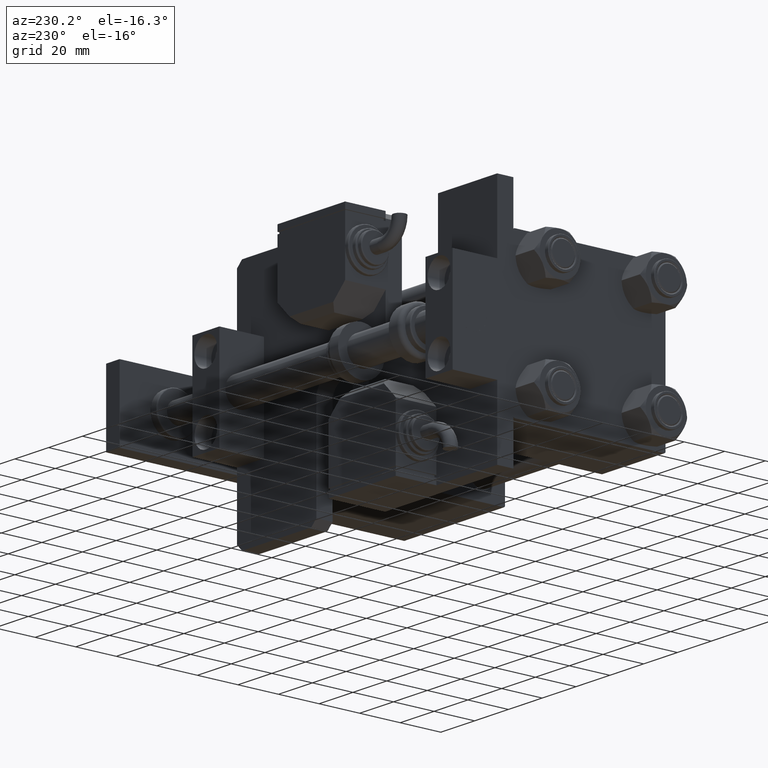
[diagram: clean part render]
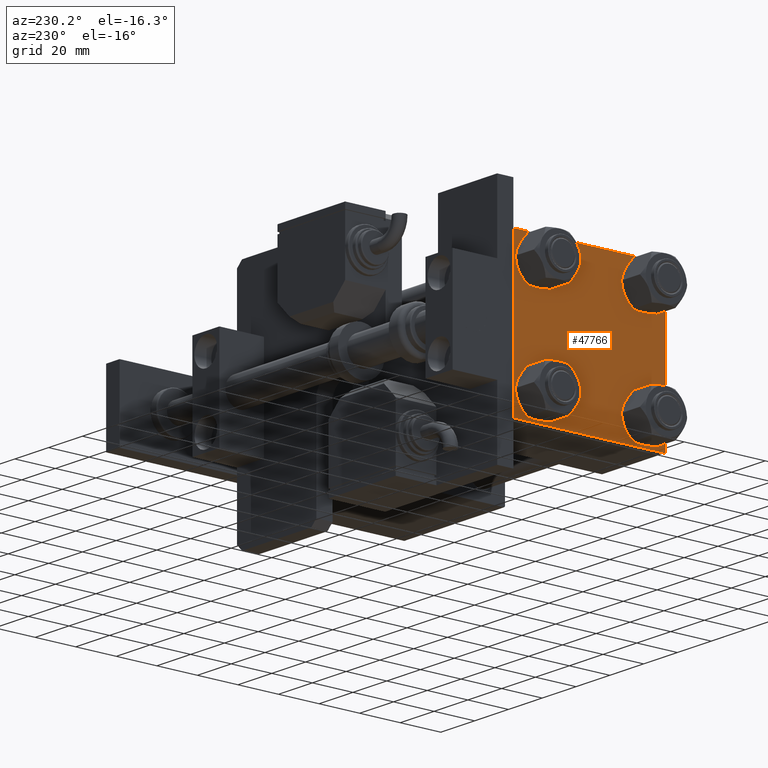
[diagram: same view with one face highlighted and labeled with its STEP entity id]
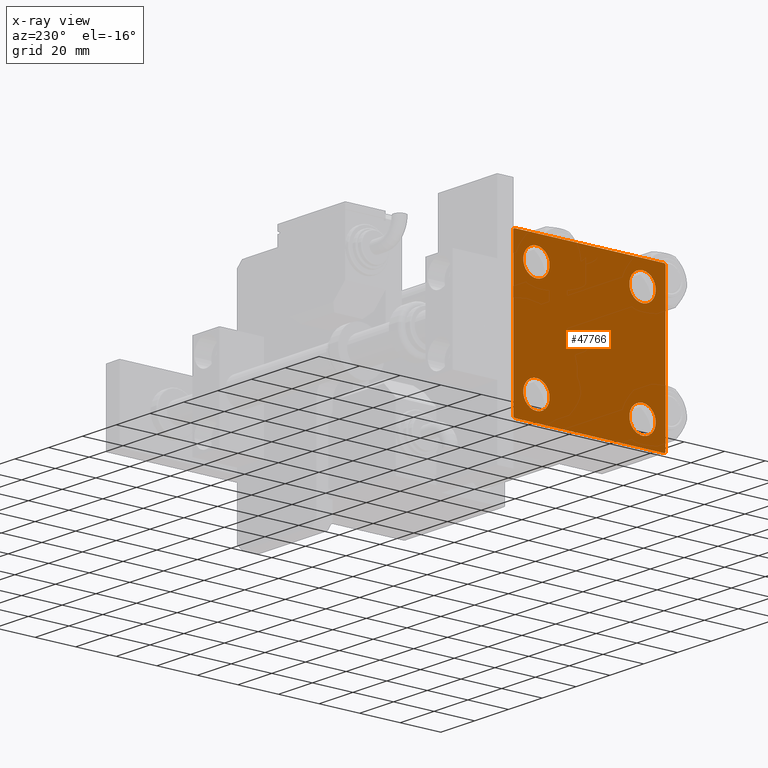
[diagram: x-ray of the same camera — body ghosted, the highlighted face saturated]
A machine part, auxiliary view. The second image highlights one B-rep face of the part: STEP entity #47766.
The next image is the same camera in x-ray: the body ghosted, the highlighted face saturated — about 0% of this face is hidden behind the body in this view.
In plain terms, the highlighted planar face has unit normal (-1, 0, 0).
Its self-contained STEP definition (entity closure, byte-faithful):
#895 = DIRECTION ( 'NONE',  ( 1.000000000000000000, -0.000000000000000000, 0.000000000000000000 ) ) ;
#929 = LINE ( 'NONE', #44198, #15092 ) ;
#1557 = AXIS2_PLACEMENT_3D ( 'NONE', #24300, #27985, #40961 ) ;
#2440 = EDGE_LOOP ( 'NONE', ( #43529, #44034 ) ) ;
#2997 = DIRECTION ( 'NONE',  ( 0.000000000000000000, -0.7071067811865524577, 0.7071067811865426878 ) ) ;
#3530 = DIRECTION ( 'NONE',  ( -0.000000000000000000, 0.7071067811865474617, 0.7071067811865474617 ) ) ;
#4423 = EDGE_CURVE ( 'NONE', #8997, #32509, #36838, .T. ) ;
#5161 = VECTOR ( 'NONE', #16016, 1000.000000000000000 ) ;
#5673 = CARTESIAN_POINT ( 'NONE',  ( 0.000000000000000000, 26.14999999999999858, -19.64999999999998792 ) ) ;
#5741 = AXIS2_PLACEMENT_3D ( 'NONE', #40682, #28535, #24006 ) ;
#5894 = DIRECTION ( 'NONE',  ( 1.000000000000000000, -0.000000000000000000, 0.000000000000000000 ) ) ;
#5937 = ORIENTED_EDGE ( 'NONE', *, *, #48269, .F. ) ;
#6189 = FACE_BOUND ( 'NONE', #10430, .T. ) ;
#7311 = FACE_OUTER_BOUND ( 'NONE', #47006, .T. ) ;
#7521 = CARTESIAN_POINT ( 'NONE',  ( 0.000000000000000000, 36.99999999999997868, -37.50000000000000000 ) ) ;
#7555 = ORIENTED_EDGE ( 'NONE', *, *, #39469, .T. ) ;
#7998 = CIRCLE ( 'NONE', #47686, 6.500000000000023093 ) ;
#8202 = EDGE_CURVE ( 'NONE', #29864, #29684, #32537, .T. ) ;
#8760 = ORIENTED_EDGE ( 'NONE', *, *, #10245, .T. ) ;
#8997 = VERTEX_POINT ( 'NONE', #5673 ) ;
#9113 = VERTEX_POINT ( 'NONE', #23496 ) ;
#10245 = EDGE_CURVE ( 'NONE', #37580, #49645, #42477, .T. ) ;
#10255 = LINE ( 'NONE', #27528, #54720 ) ;
#10430 = EDGE_LOOP ( 'NONE', ( #8760, #22340 ) ) ;
#11779 = ORIENTED_EDGE ( 'NONE', *, *, #38650, .T. ) ;
#11996 = ORIENTED_EDGE ( 'NONE', *, *, #12467, .F. ) ;
#12467 = EDGE_CURVE ( 'NONE', #51398, #24683, #47216, .T. ) ;
#13075 = VECTOR ( 'NONE', #3530, 1000.000000000000114 ) ;
#13315 = AXIS2_PLACEMENT_3D ( 'NONE', #18922, #26582, #44352 ) ;
#13993 = VECTOR ( 'NONE', #2997, 1000.000000000000000 ) ;
#14829 = VERTEX_POINT ( 'NONE', #33054 ) ;
#15092 = VECTOR ( 'NONE', #47590, 1000.000000000000000 ) ;
#16016 = DIRECTION ( 'NONE',  ( 0.000000000000000000, 9.251858538542971581E-17, -1.000000000000000000 ) ) ;
#16835 = CARTESIAN_POINT ( 'NONE',  ( 0.000000000000000000, -37.50000000000000711, 37.49999999999999289 ) ) ;
#17190 = DIRECTION ( 'NONE',  ( 0.000000000000000000, -1.000000000000000000, -9.251858538542972814E-17 ) ) ;
#18067 = DIRECTION ( 'NONE',  ( 0.000000000000000000, 0.000000000000000000, 1.000000000000000000 ) ) ;
#18455 = VECTOR ( 'NONE', #17190, 1000.000000000000000 ) ;
#18922 = CARTESIAN_POINT ( 'NONE',  ( 0.000000000000000000, 26.14999999999999858, -26.15000000000000213 ) ) ;
#18953 = VECTOR ( 'NONE', #53433, 1000.000000000000114 ) ;
#18970 = CARTESIAN_POINT ( 'NONE',  ( 0.000000000000000000, 37.24999999999998579, -37.24999999999998579 ) ) ;
#19940 = ORIENTED_EDGE ( 'NONE', *, *, #30793, .T. ) ;
#21673 = AXIS2_PLACEMENT_3D ( 'NONE', #51030, #46769, #29022 ) ;
#21825 = EDGE_LOOP ( 'NONE', ( #35226, #50013 ) ) ;
#22340 = ORIENTED_EDGE ( 'NONE', *, *, #50248, .T. ) ;
#22573 = ORIENTED_EDGE ( 'NONE', *, *, #8202, .T. ) ;
#22721 = DIRECTION ( 'NONE',  ( 1.000000000000000000, -0.000000000000000000, 0.000000000000000000 ) ) ;
#23449 = FACE_BOUND ( 'NONE', #34424, .T. ) ;
#23496 = CARTESIAN_POINT ( 'NONE',  ( 0.000000000000000000, 26.14999999999999858, 19.64999999999998437 ) ) ;
#24006 = DIRECTION ( 'NONE',  ( 0.000000000000000000, 0.000000000000000000, 1.000000000000000000 ) ) ;
#24300 = CARTESIAN_POINT ( 'NONE',  ( 0.000000000000000000, 0.000000000000000000, 0.000000000000000000 ) ) ;
#24683 = VERTEX_POINT ( 'NONE', #47451 ) ;
#24761 = EDGE_CURVE ( 'NONE', #48855, #44259, #27364, .T. ) ;
#25055 = LINE ( 'NONE', #42267, #13075 ) ;
#25548 = CARTESIAN_POINT ( 'NONE',  ( 0.000000000000000000, -26.14999999999999147, 26.15000000000000924 ) ) ;
#25809 = CARTESIAN_POINT ( 'NONE',  ( 0.000000000000000000, 26.14999999999999858, 32.65000000000002700 ) ) ;
#25972 = CARTESIAN_POINT ( 'NONE',  ( 0.000000000000000000, 37.49999999999999289, -37.50000000000000000 ) ) ;
#26546 = AXIS2_PLACEMENT_3D ( 'NONE', #45459, #44900, #49422 ) ;
#26582 = DIRECTION ( 'NONE',  ( 1.000000000000000000, -0.000000000000000000, 0.000000000000000000 ) ) ;
#27364 = CIRCLE ( 'NONE', #34575, 6.500000000000015987 ) ;
#27507 = CARTESIAN_POINT ( 'NONE',  ( 0.000000000000000000, 37.49999999999999289, -36.99999999999998579 ) ) ;
#27528 = CARTESIAN_POINT ( 'NONE',  ( 0.000000000000000000, 37.24999999999999289, 37.24999999999999289 ) ) ;
#27985 = DIRECTION ( 'NONE',  ( -1.000000000000000000, 0.000000000000000000, -0.000000000000000000 ) ) ;
#28535 = DIRECTION ( 'NONE',  ( 1.000000000000000000, -0.000000000000000000, 0.000000000000000000 ) ) ;
#28543 = PLANE ( 'NONE',  #1557 ) ;
#29022 = DIRECTION ( 'NONE',  ( 0.000000000000000000, 0.000000000000000000, 1.000000000000000000 ) ) ;
#29684 = VERTEX_POINT ( 'NONE', #7521 ) ;
#29864 = VERTEX_POINT ( 'NONE', #27507 ) ;
#30147 = ORIENTED_EDGE ( 'NONE', *, *, #35076, .T. ) ;
#30793 = EDGE_CURVE ( 'NONE', #54387, #52917, #45409, .T. ) ;
#30809 = CARTESIAN_POINT ( 'NONE',  ( 0.000000000000000000, -26.14999999999999147, 19.64999999999999147 ) ) ;
#30941 = VERTEX_POINT ( 'NONE', #38612 ) ;
#31183 = DIRECTION ( 'NONE',  ( 0.000000000000000000, 0.000000000000000000, 1.000000000000000000 ) ) ;
#31203 = CARTESIAN_POINT ( 'NONE',  ( 0.000000000000000000, -26.14999999999999147, 26.15000000000000924 ) ) ;
#31353 = CARTESIAN_POINT ( 'NONE',  ( 0.000000000000000000, -26.14999999999999147, -26.15000000000000924 ) ) ;
#32208 = FACE_BOUND ( 'NONE', #2440, .T. ) ;
#32216 = ORIENTED_EDGE ( 'NONE', *, *, #40550, .T. ) ;
#32400 = VECTOR ( 'NONE', #50923, 1000.000000000000000 ) ;
#32509 = VERTEX_POINT ( 'NONE', #51425 ) ;
#32537 = LINE ( 'NONE', #18970, #18953 ) ;
#33054 = CARTESIAN_POINT ( 'NONE',  ( 0.000000000000000000, -37.50000000000000711, 36.99999999999999289 ) ) ;
#33698 = CARTESIAN_POINT ( 'NONE',  ( 0.000000000000000000, 37.49999999999999289, 37.50000000000000000 ) ) ;
#34424 = EDGE_LOOP ( 'NONE', ( #46468, #7555 ) ) ;
#34575 = AXIS2_PLACEMENT_3D ( 'NONE', #31353, #5894, #18067 ) ;
#35076 = EDGE_CURVE ( 'NONE', #30941, #29864, #929, .T. ) ;
#35226 = ORIENTED_EDGE ( 'NONE', *, *, #39405, .T. ) ;
#35583 = CIRCLE ( 'NONE', #26546, 6.500000000000015987 ) ;
#36838 = CIRCLE ( 'NONE', #13315, 6.500000000000015987 ) ;
#37513 = CARTESIAN_POINT ( 'NONE',  ( 0.000000000000000000, -37.24999999999975842, -37.25000000000027001 ) ) ;
#37580 = VERTEX_POINT ( 'NONE', #41424 ) ;
#37869 = VERTEX_POINT ( 'NONE', #25809 ) ;
#37876 = AXIS2_PLACEMENT_3D ( 'NONE', #40211, #895, #31183 ) ;
#38583 = EDGE_CURVE ( 'NONE', #9113, #37869, #46020, .T. ) ;
#38612 = CARTESIAN_POINT ( 'NONE',  ( 0.000000000000000000, 37.49999999999999289, 37.00000000000000000 ) ) ;
#38650 = EDGE_CURVE ( 'NONE', #14829, #24683, #25055, .T. ) ;
#39275 = CIRCLE ( 'NONE', #5741, 6.500000000000023093 ) ;
#39405 = EDGE_CURVE ( 'NONE', #37869, #9113, #39275, .T. ) ;
#39469 = EDGE_CURVE ( 'NONE', #44259, #48855, #35583, .T. ) ;
#40211 = CARTESIAN_POINT ( 'NONE',  ( 0.000000000000000000, 26.14999999999999858, -26.15000000000000213 ) ) ;
#40550 = EDGE_CURVE ( 'NONE', #29684, #54387, #51397, .T. ) ;
#40682 = CARTESIAN_POINT ( 'NONE',  ( 0.000000000000000000, 26.14999999999999858, 26.15000000000000213 ) ) ;
#40961 = DIRECTION ( 'NONE',  ( -0.000000000000000000, 0.000000000000000000, 1.000000000000000000 ) ) ;
#41424 = CARTESIAN_POINT ( 'NONE',  ( 0.000000000000000000, -26.14999999999999147, 32.65000000000003411 ) ) ;
#42267 = CARTESIAN_POINT ( 'NONE',  ( -0.000000000000000000, -37.25000000000000000, 37.25000000000000000 ) ) ;
#42477 = CIRCLE ( 'NONE', #51511, 6.500000000000023093 ) ;
#43289 = CARTESIAN_POINT ( 'NONE',  ( 0.000000000000000000, 36.99999999999999289, 37.50000000000000000 ) ) ;
#43529 = ORIENTED_EDGE ( 'NONE', *, *, #4423, .T. ) ;
#44034 = ORIENTED_EDGE ( 'NONE', *, *, #55101, .T. ) ;
#44198 = CARTESIAN_POINT ( 'NONE',  ( 0.000000000000000000, 37.49999999999999289, 37.50000000000000000 ) ) ;
#44259 = VERTEX_POINT ( 'NONE', #55360 ) ;
#44352 = DIRECTION ( 'NONE',  ( 0.000000000000000000, 0.000000000000000000, 1.000000000000000000 ) ) ;
#44900 = DIRECTION ( 'NONE',  ( 1.000000000000000000, -0.000000000000000000, 0.000000000000000000 ) ) ;
#45145 = EDGE_CURVE ( 'NONE', #51398, #30941, #10255, .T. ) ;
#45409 = LINE ( 'NONE', #37513, #13993 ) ;
#45459 = CARTESIAN_POINT ( 'NONE',  ( 0.000000000000000000, -26.14999999999999147, -26.15000000000000924 ) ) ;
#46020 = CIRCLE ( 'NONE', #21673, 6.500000000000023093 ) ;
#46056 = ORIENTED_EDGE ( 'NONE', *, *, #45145, .T. ) ;
#46468 = ORIENTED_EDGE ( 'NONE', *, *, #24761, .T. ) ;
#46705 = DIRECTION ( 'NONE',  ( 0.000000000000000000, 0.000000000000000000, 1.000000000000000000 ) ) ;
#46769 = DIRECTION ( 'NONE',  ( 1.000000000000000000, -0.000000000000000000, 0.000000000000000000 ) ) ;
#47006 = EDGE_LOOP ( 'NONE', ( #30147, #22573, #32216, #19940, #5937, #11779, #11996, #46056 ) ) ;
#47051 = CARTESIAN_POINT ( 'NONE',  ( 0.000000000000000000, -37.50000000000000000, -37.00000000000003553 ) ) ;
#47142 = CARTESIAN_POINT ( 'NONE',  ( 0.000000000000000000, -26.14999999999999147, -19.64999999999999503 ) ) ;
#47216 = LINE ( 'NONE', #33698, #32400 ) ;
#47451 = CARTESIAN_POINT ( 'NONE',  ( 0.000000000000000000, -37.00000000000000711, 37.49999999999999289 ) ) ;
#47590 = DIRECTION ( 'NONE',  ( 0.000000000000000000, 0.000000000000000000, -1.000000000000000000 ) ) ;
#47686 = AXIS2_PLACEMENT_3D ( 'NONE', #31203, #22721, #52386 ) ;
#47766 = ADVANCED_FACE ( 'NONE', ( #6189, #23449, #32208, #49429, #7311 ), #28543, .T. ) ;
#48269 = EDGE_CURVE ( 'NONE', #14829, #52917, #50773, .T. ) ;
#48855 = VERTEX_POINT ( 'NONE', #47142 ) ;
#48954 = CARTESIAN_POINT ( 'NONE',  ( 0.000000000000000000, -37.00000000000002132, -37.50000000000000711 ) ) ;
#49422 = DIRECTION ( 'NONE',  ( 0.000000000000000000, 0.000000000000000000, 1.000000000000000000 ) ) ;
#49429 = FACE_BOUND ( 'NONE', #21825, .T. ) ;
#49524 = DIRECTION ( 'NONE',  ( 0.000000000000000000, 0.7071067811865474617, -0.7071067811865474617 ) ) ;
#49645 = VERTEX_POINT ( 'NONE', #30809 ) ;
#50013 = ORIENTED_EDGE ( 'NONE', *, *, #38583, .T. ) ;
#50248 = EDGE_CURVE ( 'NONE', #49645, #37580, #7998, .T. ) ;
#50773 = LINE ( 'NONE', #16835, #5161 ) ;
#50923 = DIRECTION ( 'NONE',  ( 0.000000000000000000, -1.000000000000000000, -9.251858538542971581E-17 ) ) ;
#51030 = CARTESIAN_POINT ( 'NONE',  ( 0.000000000000000000, 26.14999999999999858, 26.15000000000000213 ) ) ;
#51397 = LINE ( 'NONE', #25972, #18455 ) ;
#51398 = VERTEX_POINT ( 'NONE', #43289 ) ;
#51425 = CARTESIAN_POINT ( 'NONE',  ( 0.000000000000000000, 26.14999999999999858, -32.65000000000001990 ) ) ;
#51511 = AXIS2_PLACEMENT_3D ( 'NONE', #25548, #55189, #46705 ) ;
#52386 = DIRECTION ( 'NONE',  ( 0.000000000000000000, 0.000000000000000000, 1.000000000000000000 ) ) ;
#52917 = VERTEX_POINT ( 'NONE', #47051 ) ;
#53172 = CIRCLE ( 'NONE', #37876, 6.500000000000015987 ) ;
#53433 = DIRECTION ( 'NONE',  ( -0.000000000000000000, -0.7071067811865474617, -0.7071067811865474617 ) ) ;
#54387 = VERTEX_POINT ( 'NONE', #48954 ) ;
#54720 = VECTOR ( 'NONE', #49524, 1000.000000000000114 ) ;
#55101 = EDGE_CURVE ( 'NONE', #32509, #8997, #53172, .T. ) ;
#55189 = DIRECTION ( 'NONE',  ( 1.000000000000000000, -0.000000000000000000, 0.000000000000000000 ) ) ;
#55360 = CARTESIAN_POINT ( 'NONE',  ( 0.000000000000000000, -26.14999999999999147, -32.65000000000002700 ) ) ;